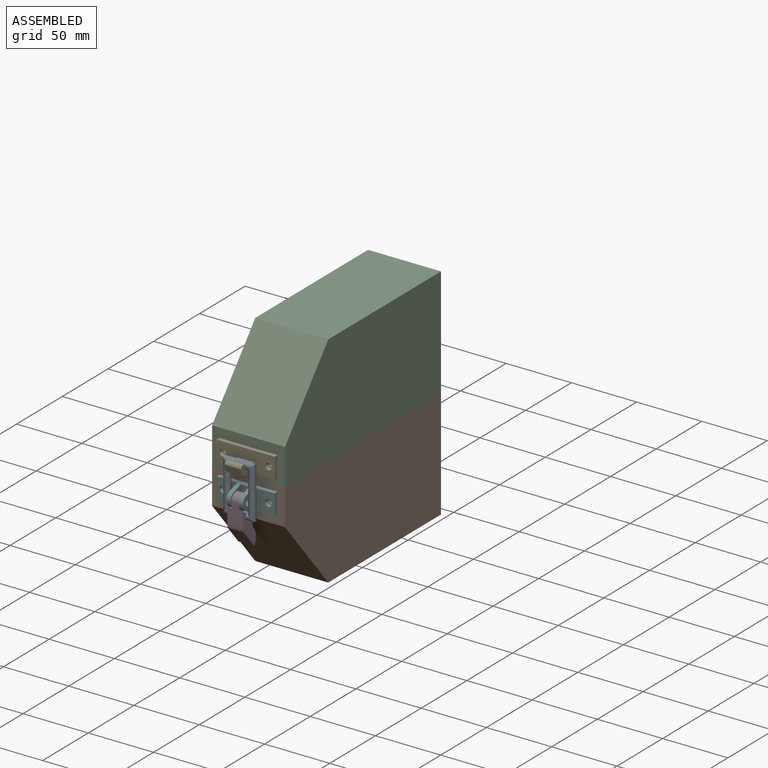
[diagram: assembled view]
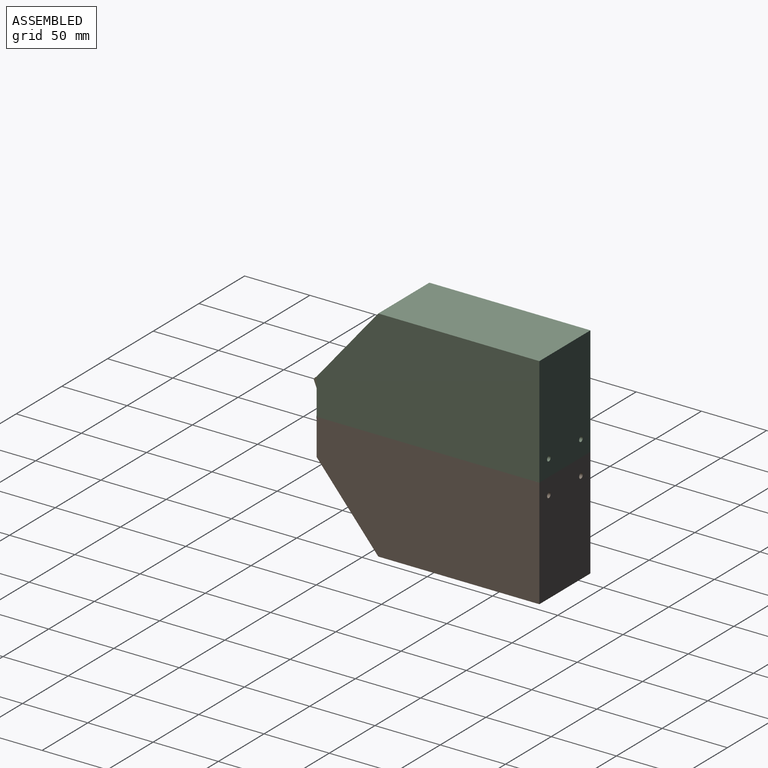
[diagram: assembled view, second angle]
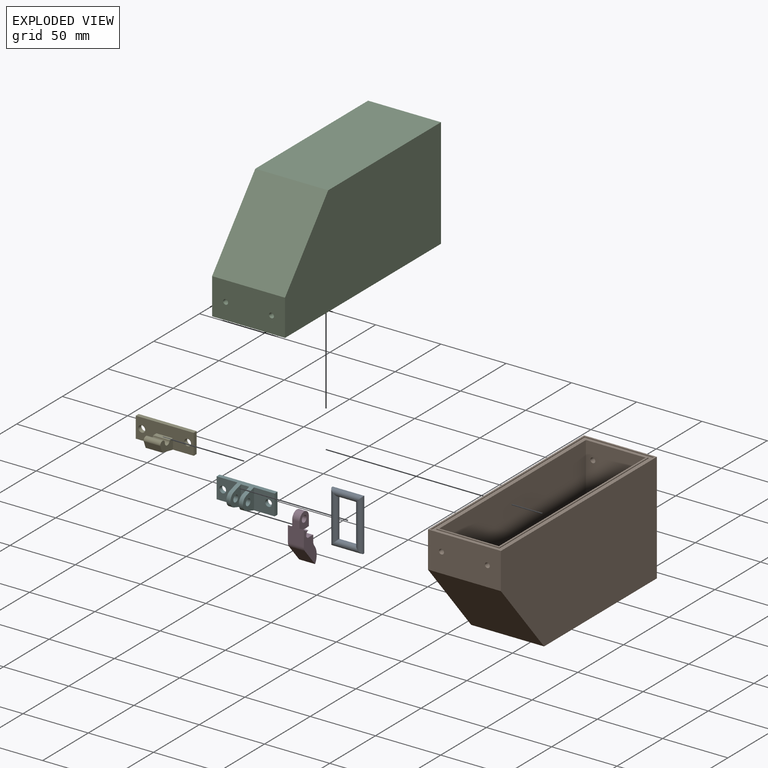
[diagram: exploded view]
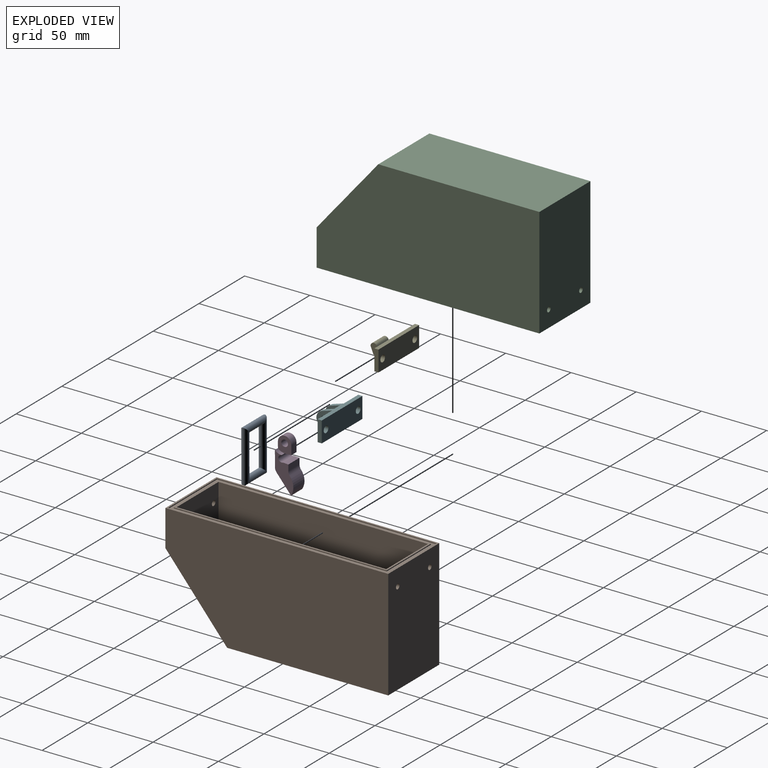
[diagram: exploded view, second angle]
ASSEMBLY  parts=6 mates=5
PART A: 4 faces, bbox 5.1x24.1x40 mm
  f0: cylinder r=2.54mm len=40.01mm, axis (0,0,-1), area 557.4mm2, adj f1,f2
  f1: cylinder r=2.54mm len=24.13mm, axis (0,-1,0), area 304mm2, adj f0,f3
  f2: cylinder r=2.54mm len=24.13mm, axis (0,1,0), area 304mm2, adj f0,f3
  f3: cylinder r=2.54mm len=40.01mm, axis (0,0,1), area 557.4mm2, adj f1,f2
PART B: 27 faces, bbox 55.9x170.7x84.2 mm
  f0: plane 170.69x55.88mm, normal (0,0,1), area 569mm2, adj f3,f4,f5,f6,f10,f11,f12,f13
  f1: plane 56.34x55.88mm, normal (0,-0.77,-0.64), area 4109.8mm2, adj f2,f3,f4,f6
  f2: plane 123.42x55.88mm, normal (0,0,-1), area 6896.5mm2, adj f1,f3,f4,f5
  f3: plane 170.69x84.17mm, normal (1,0,0), area 13034.9mm2, adj f0,f1,f2,f5,f6
  f4: plane 170.69x84.17mm, normal (-1,0,0), area 13034.9mm2, adj f0,f1,f2,f5,f6
  f5: plane 84.17x55.88mm, normal (0,1,0), area 4680.6mm2, adj f0,f2,f3,f4,f23,f25
  f6: plane 55.88x27.83mm, normal (0,-1,0), area 1532.3mm2, adj f0,f1,f3,f4,f24,f26
  f7: plane 163.07x0.75mm, normal (-1,0,0), area 122.3mm2, adj f8,f14,f15,f22
  f8: plane 48.26x0.75mm, normal (0,1,0), area 36.2mm2, adj f7,f9,f15,f22
  f9: plane 163.07x0.75mm, normal (1,0,0), area 122.3mm2, adj f8,f14,f15,f22
  f10: plane 53.34x0.75mm, normal (0,-1,0), area 40mm2, adj f0,f11,f13,f15
  f11: plane 168.15x0.75mm, normal (1,0,0), area 126.1mm2, adj f0,f10,f12,f15
  f12: plane 53.34x0.75mm, normal (0,1,0), area 40mm2, adj f0,f11,f13,f15
  f13: plane 168.15x0.75mm, normal (-1,0,0), area 126.1mm2, adj f0,f10,f12,f15
  f14: plane 48.26x0.75mm, normal (0,-1,0), area 36.2mm2, adj f7,f9,f15,f22
  f15: plane 168.15x53.34mm, normal (0,0,1), area 1099.4mm2, adj f7,f8,f9,f10,f11,f12,f13,f14
  f16: plane 53.11x45.72mm, normal (0,0.77,0.64), area 3169.8mm2, adj f17,f18,f19,f20
  f17: plane 115.97x45.72mm, normal (0,0,1), area 5302mm2, adj f16,f18,f20,f21
  f18: plane 160.53x79.09mm, normal (1,0,0), area 11512.6mm2, adj f16,f17,f19,f21,f22
  f19: plane 45.72x25.98mm, normal (0,1,0), area 1165.1mm2, adj f16,f18,f20,f22,f24,f26
  f20: plane 160.53x79.09mm, normal (-1,0,0), area 11512.6mm2, adj f16,f17,f19,f21,f22
  f21: plane 79.09x45.72mm, normal (0,-1,0), area 3593.2mm2, adj f17,f18,f20,f22,f23,f25
  f22: plane 163.07x48.26mm, normal (0,0,1), area 530.3mm2, adj f7,f8,f9,f14,f18,f19,f20,f21
  f23: cylinder r=1.9mm len=5.08mm, axis (0,-1,0), area 60.6mm2, adj f5,f21
  f24: cylinder r=1.9mm len=5.08mm, axis (0,-1,0), area 60.6mm2, adj f6,f19
  f25: cylinder r=1.9mm len=5.08mm, axis (0,-1,0), area 60.6mm2, adj f5,f21
  f26: cylinder r=1.9mm len=5.08mm, axis (0,-1,0), area 60.6mm2, adj f6,f19
PART C: 17 faces, bbox 55.9x170.7x84.2 mm
  f0: plane 55.88x27.83mm, normal (0,-1,0), area 1532.3mm2, adj f3,f4,f5,f6,f14,f16
  f1: plane 84.17x55.88mm, normal (0,1,0), area 4680.6mm2, adj f2,f4,f5,f6,f13,f15
  f2: plane 123.42x55.88mm, normal (0,0,1), area 6896.5mm2, adj f1,f3,f4,f5
  f3: plane 56.34x55.88mm, normal (0,-0.77,0.64), area 4109.8mm2, adj f0,f2,f4,f5
  f4: plane 170.69x84.17mm, normal (1,0,0), area 13034.9mm2, adj f0,f1,f2,f3,f6
  f5: plane 170.69x84.17mm, normal (-1,0,0), area 13034.9mm2, adj f0,f1,f2,f3,f6
  f6: plane 170.69x55.88mm, normal (0,0,-1), area 2198.7mm2, adj f0,f1,f4,f5,f9,f10,f11,f12
  f7: plane 53.11x45.72mm, normal (0,0.77,-0.64), area 3169.8mm2, adj f8,f9,f10,f12
  f8: plane 115.97x45.72mm, normal (0,0,-1), area 5302mm2, adj f7,f9,f11,f12
  f9: plane 160.53x79.09mm, normal (1,0,0), area 11512.6mm2, adj f6,f7,f8,f10,f11
  f10: plane 45.72x25.98mm, normal (0,1,0), area 1165.1mm2, adj f6,f7,f9,f12,f14,f16
  f11: plane 79.09x45.72mm, normal (0,-1,0), area 3593.2mm2, adj f6,f8,f9,f12,f13,f15
  f12: plane 160.53x79.09mm, normal (-1,0,0), area 11512.6mm2, adj f6,f7,f8,f10,f11
  f13: cylinder r=1.9mm len=5.08mm, axis (0,-1,0), area 60.6mm2, adj f1,f11
  f14: cylinder r=1.9mm len=5.08mm, axis (0,-1,0), area 60.6mm2, adj f0,f10
  f15: cylinder r=1.9mm len=5.08mm, axis (0,-1,0), area 60.6mm2, adj f1,f11
  f16: cylinder r=1.9mm len=5.08mm, axis (0,-1,0), area 60.6mm2, adj f0,f10
PART D: 18 faces, bbox 12.2x14x38.3 mm
  f0: cylinder r=5.14mm len=10.28mm, axis (-1,0,0), area 90.2mm2, adj f3,f4,f14,f16
  f1: plane 5.59x4.16mm, normal (0,0.06,-1), area 23.3mm2, adj f3,f9,f14,f16
  f2: cylinder r=2.55mm len=5.59mm, axis (-1,0,0), area 89.6mm2, adj f14,f16
  f3: plane 6.92x5.59mm, normal (0,1,0), area 38.7mm2, adj f0,f1,f14,f16
  f4: plane 16.72x12.19mm, normal (0,-1,0), area 172.7mm2, adj f0,f10,f11,f13,f14,f15,f16,f17
  f5: plane 13.18x12.19mm, normal (0,-0.77,-0.64), area 209.7mm2, adj f6,f10,f11,f13
  f6: cylinder r=10.94mm len=13.07mm, axis (-1,0,0), area 171.1mm2, adj f5,f10,f11,f12
  f7: plane 12.19x4.69mm, normal (0,1,0), area 57.2mm2, adj f8,f10,f11,f12
  f8: plane 12.19x4.16mm, normal (0,0.06,1), area 50.8mm2, adj f7,f9,f10,f11
  f9: cylinder r=2.55mm len=12.19mm, axis (-1,0,0), area 115.7mm2, adj f1,f8,f10,f11,f14,f15,f16,f17
  f10: plane 28.45x14.05mm, normal (1,0,0), area 188.2mm2, adj f4,f5,f6,f7,f8,f9,f12,f13
  f11: plane 28.45x14.05mm, normal (-1,0,0), area 188.2mm2, adj f4,f5,f6,f7,f8,f9,f12,f13
  f12: cylinder r=5.08mm len=12.19mm, axis (-1,0,0), area 43.4mm2, adj f6,f7,f10,f11
  f13: cylinder r=5.08mm len=12.19mm, axis (-1,0,0), area 43.2mm2, adj f4,f5,f10,f11
  f14: plane 12.31x10.28mm, normal (-1,0,0), area 89.5mm2, adj f0,f1,f2,f3,f4,f9,f15
  f15: cylinder r=6.97mm len=5.14mm, axis (-1,0,0), area 19.1mm2, adj f4,f9,f11,f14
  f16: plane 12.31x10.28mm, normal (1,0,0), area 89.5mm2, adj f0,f1,f2,f3,f4,f9,f17
  f17: cylinder r=6.97mm len=5.14mm, axis (1,0,0), area 19.1mm2, adj f4,f9,f10,f16
PART E: 15 faces, bbox 44.5x17.2x15.9 mm
  f0: plane 12.7x11.77mm, normal (0,-0.2,-0.98), area 152.6mm2, adj f2,f10,f11,f13
  f1: plane 44.45x15.88mm, normal (0,-1,0), area 563.9mm2, adj f2,f3,f4,f5,f6,f7,f9,f10
  f2: plane 44.45x3.18mm, normal (0,0,-1), area 141.1mm2, adj f0,f1,f3,f7,f8
  f3: plane 15.88x3.18mm, normal (1,0,0), area 50.4mm2, adj f1,f2,f4,f8
  f4: plane 44.45x3.18mm, normal (0,0,1), area 141.1mm2, adj f1,f3,f7,f8
  f5: cylinder r=2.55mm len=5.11mm, axis (0,1,0), area 50.9mm2, adj f1,f8
  f6: cylinder r=2.55mm len=5.11mm, axis (0,1,0), area 50.9mm2, adj f1,f8
  f7: plane 15.88x3.18mm, normal (-1,0,0), area 50.4mm2, adj f1,f2,f4,f8
  f8: plane 44.45x15.88mm, normal (0,1,0), area 664.7mm2, adj f2,f3,f4,f5,f6,f7
  f9: plane 12.7x3.8mm, normal (0,0,1), area 48.2mm2, adj f1,f10,f11,f14
  f10: plane 14.01x10.49mm, normal (-1,0,0), area 85.5mm2, adj f0,f1,f9,f12,f13,f14
  f11: plane 14.01x10.49mm, normal (1,0,0), area 85.5mm2, adj f0,f1,f9,f12,f13,f14
  f12: cylinder r=2.55mm len=12.7mm, axis (-1,0,0), area 101.8mm2, adj f10,f11,f13,f14
  f13: plane 12.7x5.54mm, normal (0,-0.93,-0.37), area 75.8mm2, adj f0,f10,f11,f12
  f14: cylinder r=2.55mm len=12.7mm, axis (-1,0,0), area 101.8mm2, adj f9,f10,f11,f12
PART F: 23 faces, bbox 44.5x15.3x15.9 mm
  f0: plane 15.68x12.08mm, normal (-1,0,0), area 114.4mm2, adj f13,f14,f15,f16,f20,f21,f22
  f1: cylinder r=5.73mm len=10.95mm, axis (-1,0,0), area 46.3mm2, adj f3,f13,f18,f19
  f2: cylinder r=2.55mm len=5.11mm, axis (-1,0,0), area 50.9mm2, adj f18,f19
  f3: plane 8.03x3.18mm, normal (0,-0.29,-0.96), area 26.7mm2, adj f1,f5,f18,f19
  f4: plane 15.88x15.88mm, normal (0,-1,0), area 231.5mm2, adj f5,f7,f8,f10,f18
  f5: plane 44.45x3.18mm, normal (0,0,-1), area 141.1mm2, adj f3,f4,f6,f10,f11,f12,f16,f20
  f6: plane 15.88x3.18mm, normal (1,0,0), area 50.4mm2, adj f5,f7,f11,f12
  f7: plane 44.45x3.18mm, normal (0,0,1), area 141.1mm2, adj f4,f6,f10,f11,f12,f13
  f8: cylinder r=2.55mm len=5.11mm, axis (0,1,0), area 50.9mm2, adj f4,f12
  f9: cylinder r=2.55mm len=5.11mm, axis (0,1,0), area 50.9mm2, adj f11,f12
  f10: plane 15.88x3.18mm, normal (-1,0,0), area 50.4mm2, adj f4,f5,f7,f12
  f11: plane 15.88x15.88mm, normal (0,-1,0), area 231.5mm2, adj f5,f6,f7,f9,f17
  f12: plane 44.45x15.88mm, normal (0,1,0), area 664.7mm2, adj f5,f6,f7,f8,f9,f10
  f13: plane 12.7x8.03mm, normal (0,-0.29,0.96), area 57.5mm2, adj f0,f1,f7,f14,f17,f18,f19,f21
  f14: cylinder r=5.73mm len=10.95mm, axis (-1,0,0), area 46.3mm2, adj f0,f13,f16,f17
  f15: cylinder r=2.55mm len=5.11mm, axis (-1,0,0), area 50.9mm2, adj f0,f17
  f16: plane 8.03x3.18mm, normal (0,-0.29,-0.96), area 26.7mm2, adj f0,f5,f14,f17
  f17: plane 15.88x12.08mm, normal (1,0,0), area 119.8mm2, adj f11,f13,f14,f15,f16
  f18: plane 15.88x12.08mm, normal (-1,0,0), area 119.8mm2, adj f1,f2,f3,f4,f13
  f19: plane 15.68x12.08mm, normal (1,0,0), area 114.4mm2, adj f1,f2,f3,f13,f20,f21,f22
  f20: plane 6.35x6.23mm, normal (0,-1,0), area 39.5mm2, adj f0,f5,f19,f22
  f21: plane 7.75x6.35mm, normal (0,-1,0), area 49.2mm2, adj f0,f13,f19,f22
  f22: plane 6.35x1.71mm, normal (0,-0.94,-0.34), area 11.6mm2, adj f0,f19,f20,f21
PLACE A rot(axis=(0,0,-1),90deg) t=(22.08,-94.23,-45.95)mm
PLACE B t=(22.08,1.79,-23.73)mm fixed
PLACE C t=(22.08,1.79,-23.73)mm
PLACE D rot(axis=(1,0,0),0.2deg) t=(15.99,-94.26,-36.43)mm
PLACE E t=(22.08,-84.74,-11.03)mm
PLACE F t=(22.08,-84.74,-36.43)mm
MATE slider C.f6 <-> B.f0  axis (0,0,-1) through (50.02,-84.74,-23.73)mm
MATE revolute A.f1 <-> D.f9  axis (-1,0,0) through (22.08,-94.23,-45.95)mm
MATE fastened E.f6 <-> C.f15  axis (0,1,0) through (39.65,-84.74,-11.03)mm
MATE fastened F.f9 <-> B.f25  axis (0,1,0) through (39.65,-84.74,-36.43)mm
MATE revolute D.f2 <-> F.f2  axis (-1,0,0) through (24.88,-94.26,-36.43)mm
